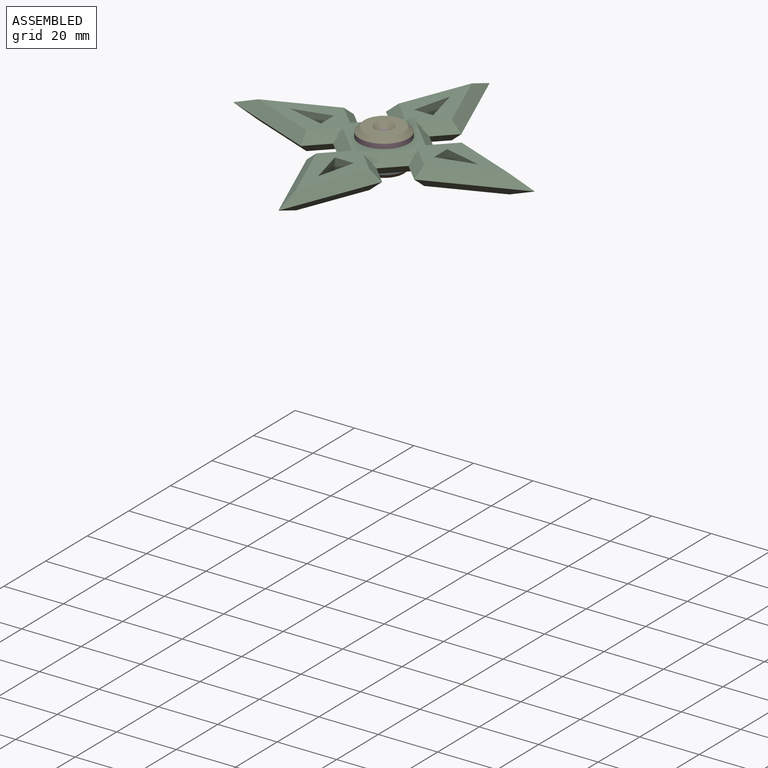
[diagram: assembled view]
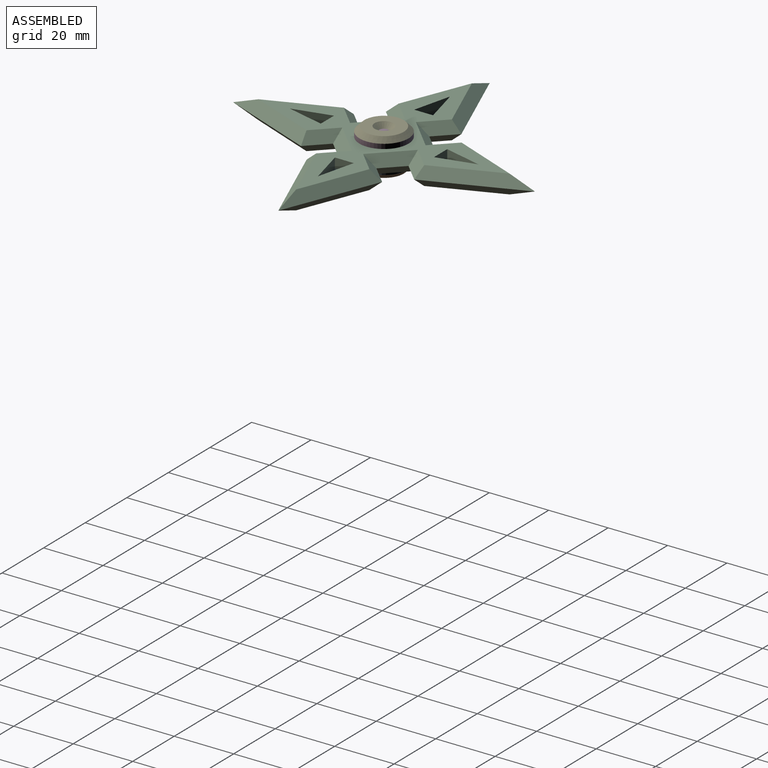
[diagram: assembled view, second angle]
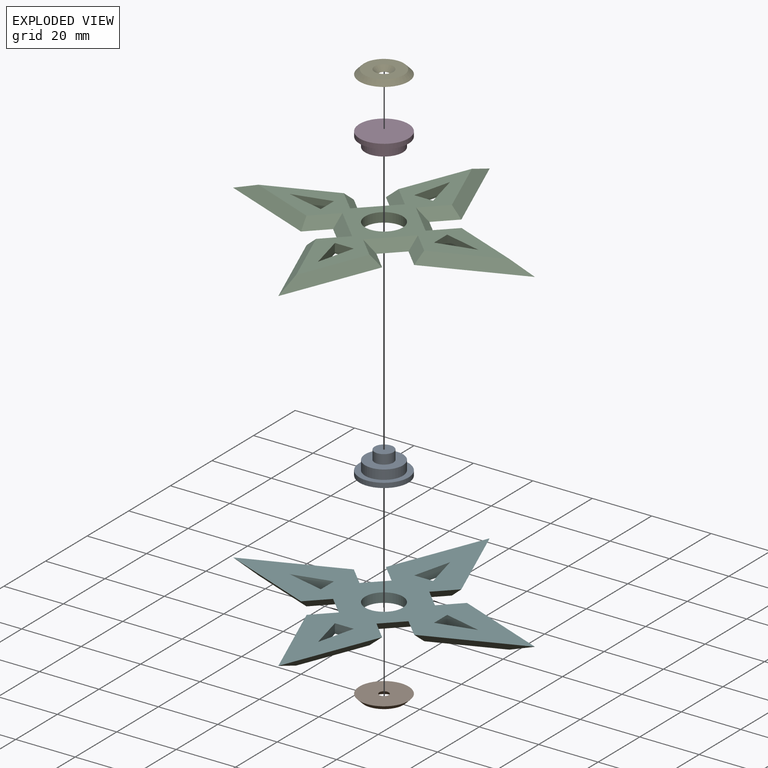
[diagram: exploded view]
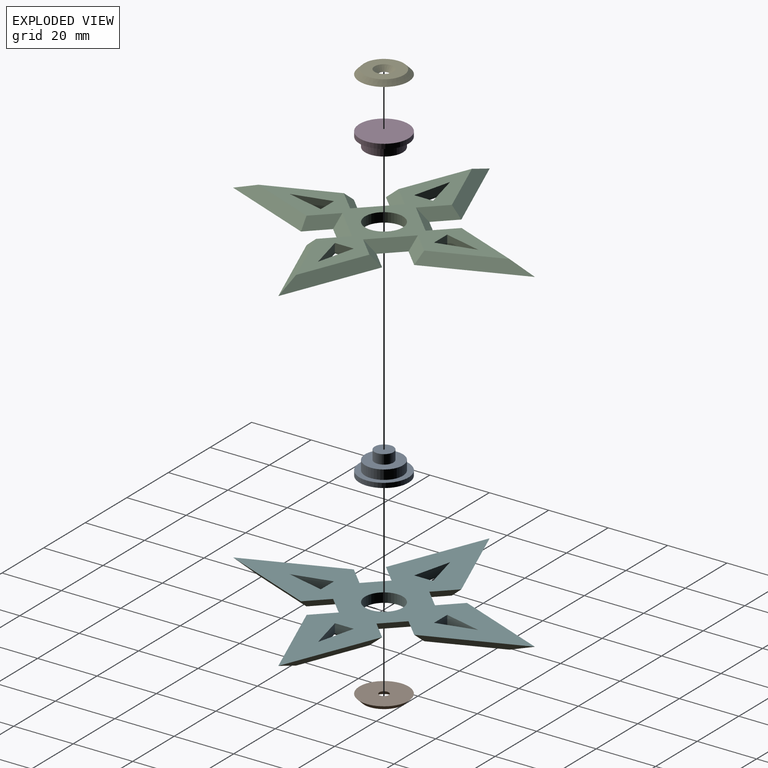
[diagram: exploded view, second angle]
ASSEMBLY  parts=6 mates=5
PART A: 7 faces, bbox 16.5x16.5x7.9 mm
  f0: cylinder r=8.26mm len=16.51mm, axis (0,0,1), area 82.3mm2, adj f3,f6
  f1: cylinder r=6.35mm len=12.7mm, axis (0,0,-1), area 126.7mm2, adj f2,f3
  f2: plane 12.7x12.7mm, normal (0,0,1), area 95mm2, adj f1,f4
  f3: plane 16.51x16.51mm, normal (0,0,1), area 87.4mm2, adj f0,f1
  f4: cylinder r=3.17mm len=6.35mm, axis (0,0,-1), area 63.3mm2, adj f2,f5
  f5: plane 6.35x6.35mm, normal (0,0,1), area 31.7mm2, adj f4
  f6: plane 16.51x16.51mm, normal (0,0,-1), area 214.1mm2, adj f0
PART B: 4 faces, bbox 16.5x16.5x1.6 mm
  f0: cone r=8.26mm half-angle=45deg, axis (0,0,-1), area 105.2mm2, adj f1,f2
  f1: plane 13.34x13.34mm, normal (0,0,1), area 108mm2, adj f0,f3
  f2: plane 16.51x16.51mm, normal (0,0,-1), area 206.2mm2, adj f0,f3
  f3: cone r=3.17mm half-angle=45deg, axis (0,0,1), area 33.6mm2, adj f1,f2
PART C: 35 faces, bbox 101.6x101.6x3.2 mm
  f0: plane 6.35x3.18mm, normal (0,1,0), area 20.2mm2, adj f1,f12,f13,f14
  f1: plane 12.7x3.18mm, normal (0.97,-0.24,0), area 41.6mm2, adj f0,f12,f13,f14
  f2: plane 6.35x3.18mm, normal (-1,0,0), area 20.2mm2, adj f3,f8,f13,f14
  f3: plane 12.7x3.18mm, normal (0.24,0.97,0), area 41.6mm2, adj f2,f8,f13,f14
  f4: plane 6.35x3.18mm, normal (1,0,0), area 20.2mm2, adj f5,f10,f13,f14
  f5: plane 12.7x3.18mm, normal (-0.24,-0.97,0), area 41.6mm2, adj f4,f10,f13,f14
  f6: plane 6.35x3.18mm, normal (0,-1,0), area 20.2mm2, adj f7,f11,f13,f14
  f7: plane 12.7x3.18mm, normal (-0.97,0.24,0), area 41.6mm2, adj f6,f11,f13,f14
  f8: plane 12.7x3.18mm, normal (0.24,-0.97,0), area 41.6mm2, adj f2,f3,f13,f14
  f9: cylinder r=6.35mm len=12.7mm, axis (0,0,-1), area 126.7mm2, adj f13,f14
  f10: plane 12.7x3.18mm, normal (-0.24,0.97,0), area 41.6mm2, adj f4,f5,f13,f14
  f11: plane 12.7x3.18mm, normal (0.97,0.24,0), area 41.6mm2, adj f6,f7,f13,f14
  f12: plane 12.7x3.18mm, normal (-0.97,-0.24,0), area 41.6mm2, adj f0,f1,f13,f14
  f13: plane 84.5x84.5mm, normal (0,0,1), area 1235.9mm2, adj f0,f1,f2,f3,f4,f5,f6,f7
  f14: plane 101.6x101.6mm, normal (0,0,-1), area 2373.3mm2, adj f0,f1,f2,f3,f4,f5,f6,f7
  f15: plane 10.84x7.11mm, normal (-0.5,0.5,0.71), area 42.8mm2, adj f13,f14,f16,f17
  f16: plane 10.84x10.84mm, normal (-0.5,-0.5,0.71), area 54.6mm2, adj f13,f14,f15,f18
  f17: plane 31.75x12.7mm, normal (-0.66,-0.26,0.71), area 131mm2, adj f13,f14,f15,f19
  f18: plane 10.84x7.11mm, normal (0.5,-0.5,0.71), area 42.8mm2, adj f13,f14,f16,f20
  f19: plane 31.75x12.7mm, normal (0.66,-0.26,0.71), area 131mm2, adj f13,f14,f17,f21
  f20: plane 31.75x12.7mm, normal (-0.26,-0.66,0.71), area 131mm2, adj f13,f14,f18,f22
  f21: plane 10.84x7.11mm, normal (0.5,0.5,0.71), area 42.8mm2, adj f13,f14,f19,f23
  f22: plane 31.75x12.7mm, normal (-0.26,0.66,0.71), area 131mm2, adj f13,f14,f20,f24
  f23: plane 10.84x10.84mm, normal (0.5,-0.5,0.71), area 54.6mm2, adj f13,f14,f21,f25
  f24: plane 10.84x7.11mm, normal (0.5,0.5,0.71), area 42.8mm2, adj f13,f14,f22,f26
  f25: plane 10.84x7.11mm, normal (-0.5,-0.5,0.71), area 42.8mm2, adj f13,f14,f23,f27
  f26: plane 10.84x10.84mm, normal (-0.5,0.5,0.71), area 54.6mm2, adj f13,f14,f24,f28
  f27: plane 31.75x12.7mm, normal (0.26,-0.66,0.71), area 131mm2, adj f13,f14,f25,f29
  f28: plane 10.84x7.11mm, normal (-0.5,-0.5,0.71), area 42.8mm2, adj f13,f14,f26,f30
  f29: plane 31.75x12.7mm, normal (0.26,0.66,0.71), area 131mm2, adj f13,f14,f27,f31
  f30: plane 31.75x12.7mm, normal (-0.66,0.26,0.71), area 131mm2, adj f13,f14,f28,f32
  f31: plane 10.84x7.11mm, normal (-0.5,0.5,0.71), area 42.8mm2, adj f13,f14,f29,f33
  f32: plane 31.75x12.7mm, normal (0.66,0.26,0.71), area 131mm2, adj f13,f14,f30,f34
  f33: plane 10.84x10.84mm, normal (0.5,0.5,0.71), area 54.6mm2, adj f13,f14,f31,f34
  f34: plane 10.84x7.11mm, normal (0.5,-0.5,0.71), area 42.8mm2, adj f13,f14,f32,f33
PART D: 7 faces, bbox 16.5x16.5x4.8 mm
  f0: cylinder r=8.26mm len=16.51mm, axis (0,0,1), area 82.3mm2, adj f4,f6
  f1: cylinder r=3.17mm len=6.35mm, axis (0,0,-1), area 63.3mm2, adj f3,f5
  f2: cylinder r=6.35mm len=12.7mm, axis (0,0,-1), area 126.7mm2, adj f3,f4
  f3: plane 12.7x12.7mm, normal (0,0,1), area 95mm2, adj f1,f2
  f4: plane 16.51x16.51mm, normal (0,0,1), area 87.4mm2, adj f0,f2
  f5: plane 6.35x6.35mm, normal (0,0,1), area 31.7mm2, adj f1
  f6: plane 16.51x16.51mm, normal (0,0,-1), area 214.1mm2, adj f0
PART E: 4 faces, bbox 16.5x16.5x1.6 mm
  f0: cone r=8.26mm half-angle=45deg, axis (0,0,-1), area 105.2mm2, adj f1,f2
  f1: plane 13.34x13.34mm, normal (0,0,1), area 108mm2, adj f0,f3
  f2: plane 16.51x16.51mm, normal (0,0,-1), area 206.2mm2, adj f0,f3
  f3: cone r=3.17mm half-angle=45deg, axis (0,0,1), area 33.6mm2, adj f1,f2
PART F: same geometry as C
PLACE A t=(-74.71,-83.91,16.59)mm
PLACE B rot(axis=(1,0,0),180deg) t=(-15.08,-76.99,15)mm
PLACE C rot(axis=(0,-1,0),0deg) t=(-49.31,-83.91,19.76)mm
PLACE D rot(axis=(0,1,0),180deg) t=(-49.31,-83.91,22.94)mm
PLACE E t=(10.32,-90.84,24.53)mm
PLACE F rot(axis=(0,1,0),180deg) t=(-49.31,-83.91,19.76)mm
MATE planar C.f9 <-> F.f9  axis (0,0,-1) through (-49.31,-83.91,19.76)mm
MATE planar B.f0 <-> A.f0  axis (0,0,1) through (-49.31,-83.91,15)mm
MATE cylindrical C.f9 <-> D.f2  axis (0,0,1) through (-49.31,-83.91,22.94)mm
MATE planar D.f1 <-> A.f4  axis (0,0,-1) through (-49.31,-83.91,22.94)mm
MATE planar E.f0 <-> D.f0  axis (0,0,-1) through (-49.31,-83.91,24.53)mm
